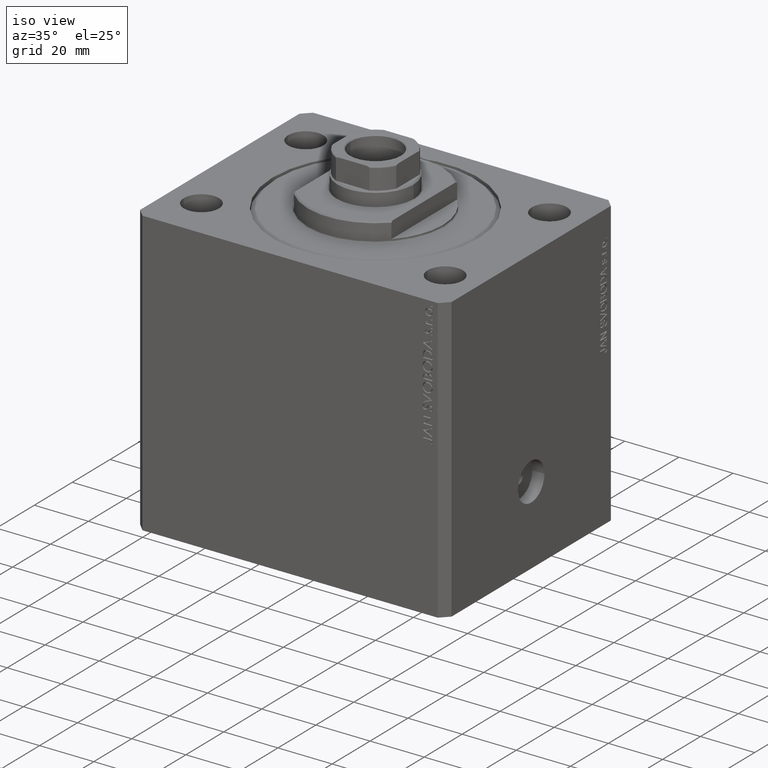
[diagram: clean part render]
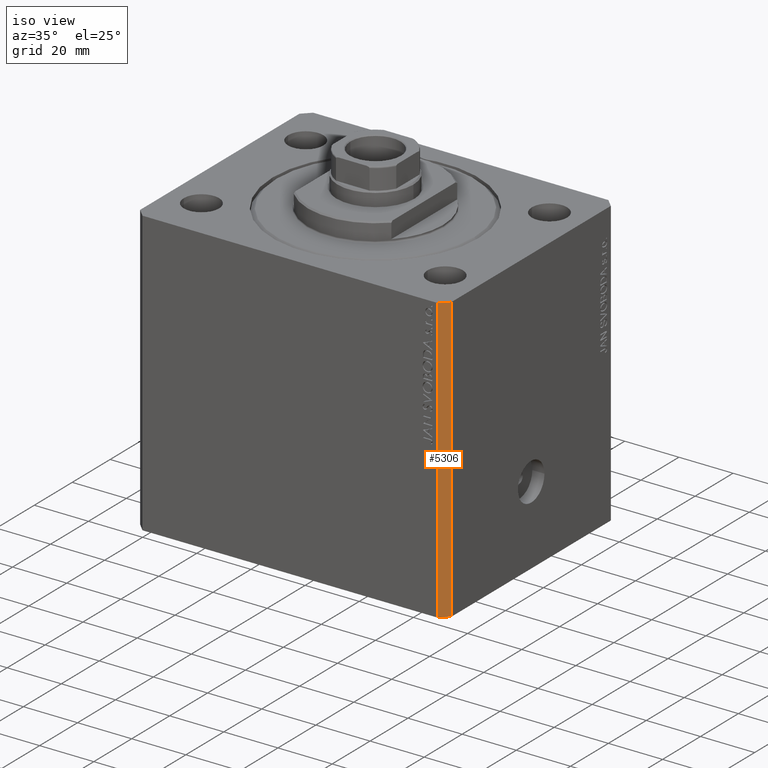
[diagram: same view with one face highlighted and labeled with its STEP entity id]
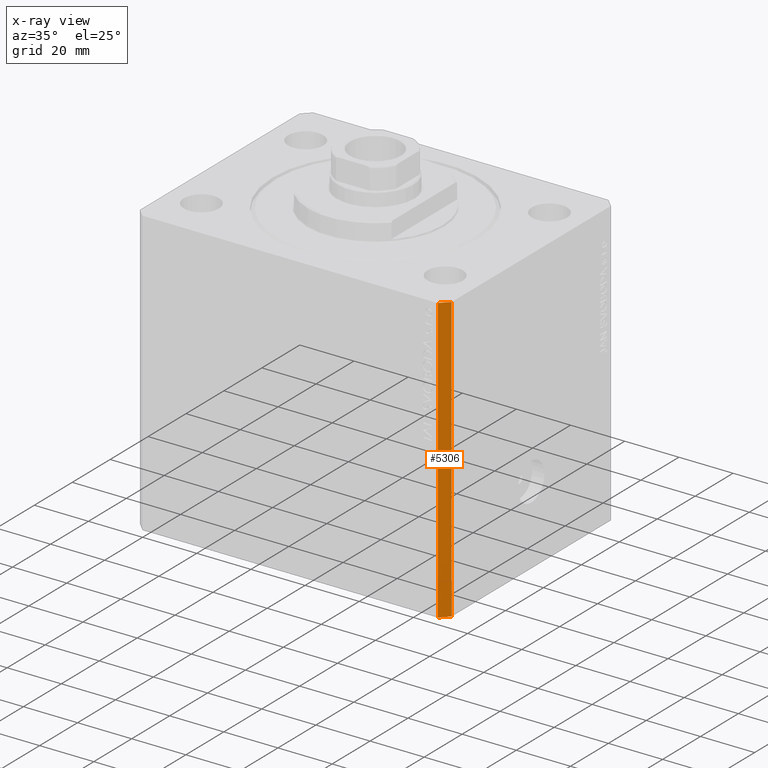
[diagram: x-ray of the same camera — body ghosted, the highlighted face saturated]
A machine part, iso view. The second image highlights one B-rep face of the part: STEP entity #5306.
The next image is the same camera in x-ray: the body ghosted, the highlighted face saturated — about 0% of this face is hidden behind the body in this view.
In plain terms, the highlighted planar face has unit normal (0.7071, -0.7071, 0).
Its self-contained STEP definition (entity closure, byte-faithful):
#214 = CARTESIAN_POINT ( 'NONE',  ( 57.50000000000000711, -41.99999999999998579, -105.0000000000000000 ) ) ;
#441 = ORIENTED_EDGE ( 'NONE', *, *, #21832, .F. ) ;
#993 = CARTESIAN_POINT ( 'NONE',  ( 54.50000000000000711, -44.99999999999998579, -105.0000000000000000 ) ) ;
#1618 = AXIS2_PLACEMENT_3D ( 'NONE', #993, #19264, #2424 ) ;
#2424 = DIRECTION ( 'NONE',  ( 0.7071067811865483499, 0.7071067811865465735, 0.000000000000000000 ) ) ;
#3753 = LINE ( 'NONE', #36421, #23593 ) ;
#4408 = PLANE ( 'NONE',  #1618 ) ;
#5306 = ADVANCED_FACE ( 'NONE', ( #22931 ), #4408, .T. ) ;
#6895 = ORIENTED_EDGE ( 'NONE', *, *, #15200, .F. ) ;
#6902 = DIRECTION ( 'NONE',  ( 0.000000000000000000, 0.000000000000000000, 1.000000000000000000 ) ) ;
#7303 = ORIENTED_EDGE ( 'NONE', *, *, #11778, .T. ) ;
#11778 = EDGE_CURVE ( 'NONE', #31304, #45410, #18241, .T. ) ;
#12052 = CARTESIAN_POINT ( 'NONE',  ( 57.50000000000000711, -41.99999999999998579, -105.0000000000000000 ) ) ;
#14143 = CARTESIAN_POINT ( 'NONE',  ( 54.50000000000000711, -44.99999999999998579, 0.000000000000000000 ) ) ;
#15200 = EDGE_CURVE ( 'NONE', #27230, #45410, #3753, .T. ) ;
#15895 = VECTOR ( 'NONE', #6902, 1000.000000000000000 ) ;
#16596 = CARTESIAN_POINT ( 'NONE',  ( 57.50000000000000711, -41.99999999999998579, 0.000000000000000000 ) ) ;
#16892 = CARTESIAN_POINT ( 'NONE',  ( 54.50000000000000711, -44.99999999999998579, -105.0000000000000000 ) ) ;
#17879 = DIRECTION ( 'NONE',  ( 0.7071067811865483499, 0.7071067811865466846, 0.000000000000000000 ) ) ;
#18020 = VECTOR ( 'NONE', #41151, 1000.000000000000000 ) ;
#18241 = LINE ( 'NONE', #214, #18020 ) ;
#18349 = VERTEX_POINT ( 'NONE', #46954 ) ;
#18595 = LINE ( 'NONE', #33478, #15895 ) ;
#19131 = VECTOR ( 'NONE', #46612, 1000.000000000000000 ) ;
#19264 = DIRECTION ( 'NONE',  ( 0.7071067811865466846, -0.7071067811865484609, 0.000000000000000000 ) ) ;
#19608 = ORIENTED_EDGE ( 'NONE', *, *, #25973, .T. ) ;
#21832 = EDGE_CURVE ( 'NONE', #18349, #27230, #18595, .T. ) ;
#22931 = FACE_OUTER_BOUND ( 'NONE', #30050, .T. ) ;
#23593 = VECTOR ( 'NONE', #17879, 1000.000000000000000 ) ;
#23740 = LINE ( 'NONE', #16892, #19131 ) ;
#25973 = EDGE_CURVE ( 'NONE', #18349, #31304, #23740, .T. ) ;
#27230 = VERTEX_POINT ( 'NONE', #14143 ) ;
#30050 = EDGE_LOOP ( 'NONE', ( #6895, #441, #19608, #7303 ) ) ;
#31304 = VERTEX_POINT ( 'NONE', #12052 ) ;
#33478 = CARTESIAN_POINT ( 'NONE',  ( 54.50000000000000711, -44.99999999999998579, -105.0000000000000000 ) ) ;
#36421 = CARTESIAN_POINT ( 'NONE',  ( 54.50000000000000711, -44.99999999999998579, 0.000000000000000000 ) ) ;
#41151 = DIRECTION ( 'NONE',  ( 0.000000000000000000, 0.000000000000000000, 1.000000000000000000 ) ) ;
#45410 = VERTEX_POINT ( 'NONE', #16596 ) ;
#46612 = DIRECTION ( 'NONE',  ( 0.7071067811865483499, 0.7071067811865466846, 0.000000000000000000 ) ) ;
#46954 = CARTESIAN_POINT ( 'NONE',  ( 54.50000000000000711, -44.99999999999998579, -105.0000000000000000 ) ) ;